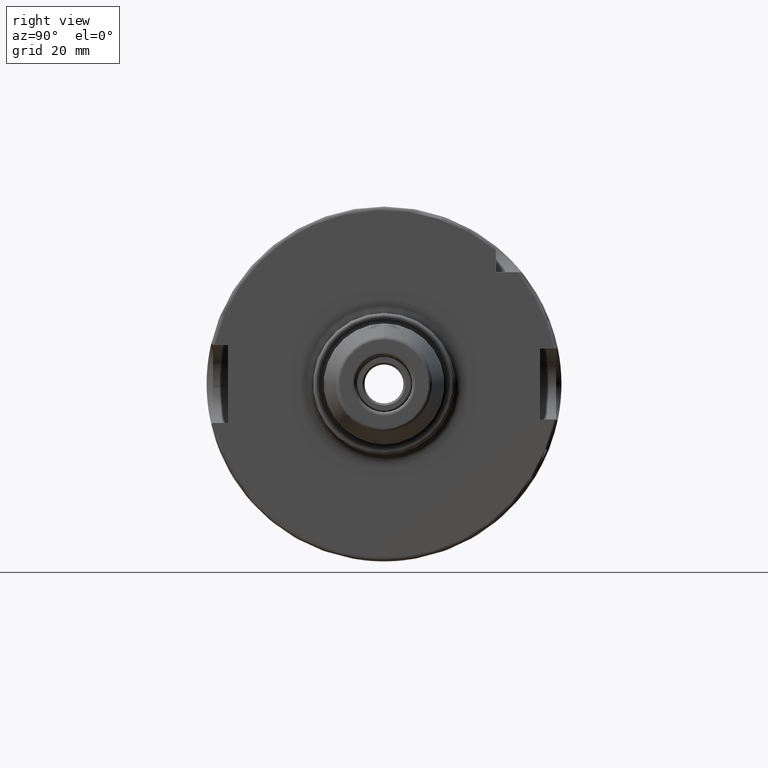
[diagram: clean part render]
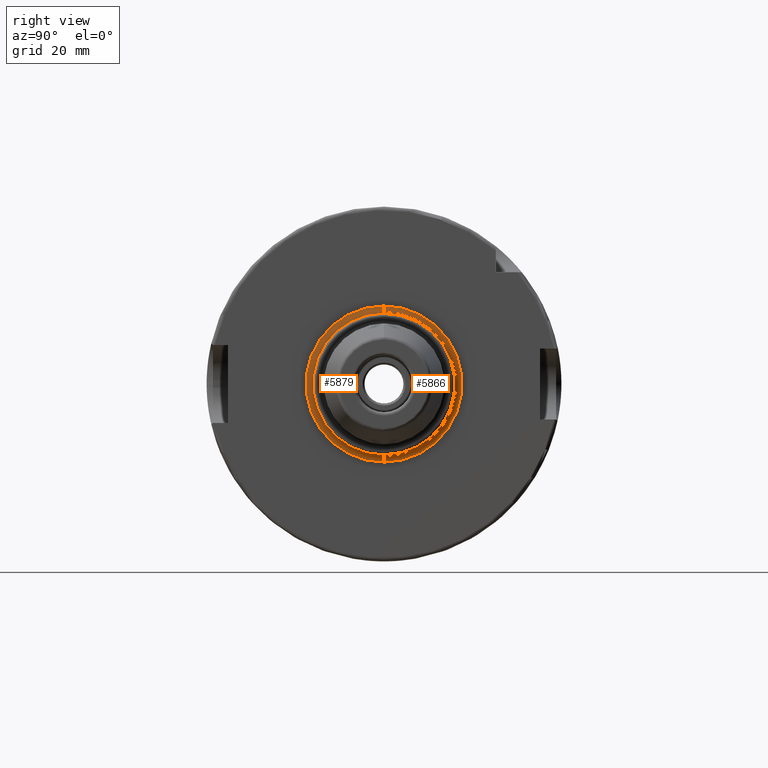
[diagram: same view with one multi-face feature highlighted, each face labeled with its STEP entity id]
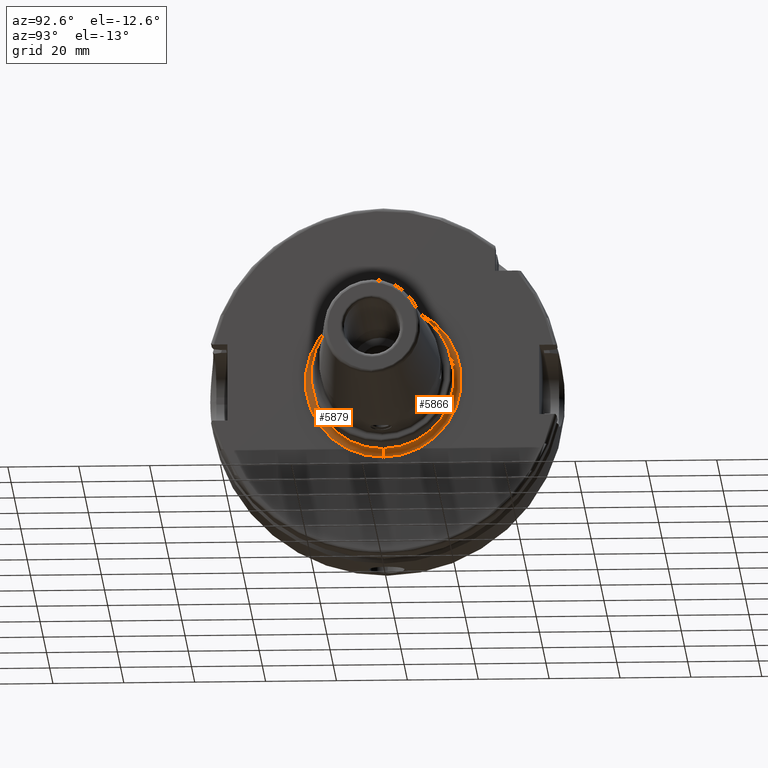
[diagram: same view with one multi-face feature highlighted, each face labeled with its STEP entity id]
A machine part, right view. The highlighted faces form ONE feature: a constant-radius fillet chain: 2 tangent blend faces with common blend radius 2 mm. The faces share edges in the B-rep.
A second angle (auxiliary view) of the same feature is appended — it is thin or edge-on in the first view.
Their STEP definitions:
[1] entity #5879 (Torus):
#1976=CARTESIAN_POINT('',(2.9E1,0.E0,0.E0));
#1977=DIRECTION('',(1.E0,0.E0,0.E0));
#1978=DIRECTION('',(0.E0,0.E0,1.E0));
#1979=AXIS2_PLACEMENT_3D('',#1976,#1977,#1978);
#2191=CARTESIAN_POINT('',(3.1E1,0.E0,-2.2E1));
#2192=DIRECTION('',(0.E0,1.E0,0.E0));
#2193=DIRECTION('',(-1.E0,0.E0,0.E0));
#2194=AXIS2_PLACEMENT_3D('',#2191,#2192,#2193);
#2201=CARTESIAN_POINT('',(3.1E1,0.E0,2.2E1));
#2202=DIRECTION('',(0.E0,-1.E0,0.E0));
#2203=DIRECTION('',(-1.E0,0.E0,0.E0));
#2204=AXIS2_PLACEMENT_3D('',#2201,#2202,#2203);
#2206=CARTESIAN_POINT('',(3.1E1,0.E0,0.E0));
#2207=DIRECTION('',(1.E0,0.E0,0.E0));
#2208=DIRECTION('',(0.E0,0.E0,1.E0));
#2209=AXIS2_PLACEMENT_3D('',#2206,#2207,#2208);
#3397=CARTESIAN_POINT('',(2.9E1,0.E0,-2.2E1));
#3398=CARTESIAN_POINT('',(2.9E1,0.E0,2.2E1));
#3399=VERTEX_POINT('',#3397);
#3400=VERTEX_POINT('',#3398);
#3462=CARTESIAN_POINT('',(3.1E1,0.E0,-2.E1));
#3463=VERTEX_POINT('',#3462);
#3464=CARTESIAN_POINT('',(3.1E1,0.E0,2.E1));
#3465=VERTEX_POINT('',#3464);
#5867=CARTESIAN_POINT('',(3.1E1,0.E0,0.E0));
#5868=DIRECTION('',(1.E0,0.E0,0.E0));
#5869=DIRECTION('',(0.E0,0.E0,1.E0));
#5870=AXIS2_PLACEMENT_3D('',#5867,#5868,#5869);
#5871=TOROIDAL_SURFACE('',#5870,2.2E1,2.E0);
#5872=ORIENTED_EDGE('',*,*,#5612,.F.);
#5873=ORIENTED_EDGE('',*,*,#5862,.T.);
#5875=ORIENTED_EDGE('',*,*,#5874,.T.);
#5876=ORIENTED_EDGE('',*,*,#5858,.F.);
#5877=EDGE_LOOP('',(#5872,#5873,#5875,#5876));
#5878=FACE_OUTER_BOUND('',#5877,.F.);
#5879=ADVANCED_FACE('',(#5878),#5871,.F.);
#1980=CIRCLE('',#1979,2.2E1);
#2195=CIRCLE('',#2194,2.E0);
#2205=CIRCLE('',#2204,2.E0);
#2210=CIRCLE('',#2209,2.E1);
#5612=EDGE_CURVE('',#3400,#3399,#1980,.T.);
#5858=EDGE_CURVE('',#3399,#3463,#2195,.T.);
#5862=EDGE_CURVE('',#3400,#3465,#2205,.T.);
#5874=EDGE_CURVE('',#3465,#3463,#2210,.T.);
[2] entity #5866 (Torus):
#1971=CARTESIAN_POINT('',(2.9E1,0.E0,0.E0));
#1972=DIRECTION('',(1.E0,0.E0,0.E0));
#1973=DIRECTION('',(0.E0,0.E0,-1.E0));
#1974=AXIS2_PLACEMENT_3D('',#1971,#1972,#1973);
#2191=CARTESIAN_POINT('',(3.1E1,0.E0,-2.2E1));
#2192=DIRECTION('',(0.E0,1.E0,0.E0));
#2193=DIRECTION('',(-1.E0,0.E0,0.E0));
#2194=AXIS2_PLACEMENT_3D('',#2191,#2192,#2193);
#2196=CARTESIAN_POINT('',(3.1E1,0.E0,0.E0));
#2197=DIRECTION('',(1.E0,0.E0,0.E0));
#2198=DIRECTION('',(0.E0,0.E0,-1.E0));
#2199=AXIS2_PLACEMENT_3D('',#2196,#2197,#2198);
#2201=CARTESIAN_POINT('',(3.1E1,0.E0,2.2E1));
#2202=DIRECTION('',(0.E0,-1.E0,0.E0));
#2203=DIRECTION('',(-1.E0,0.E0,0.E0));
#2204=AXIS2_PLACEMENT_3D('',#2201,#2202,#2203);
#3397=CARTESIAN_POINT('',(2.9E1,0.E0,-2.2E1));
#3398=CARTESIAN_POINT('',(2.9E1,0.E0,2.2E1));
#3399=VERTEX_POINT('',#3397);
#3400=VERTEX_POINT('',#3398);
#3462=CARTESIAN_POINT('',(3.1E1,0.E0,-2.E1));
#3463=VERTEX_POINT('',#3462);
#3464=CARTESIAN_POINT('',(3.1E1,0.E0,2.E1));
#3465=VERTEX_POINT('',#3464);
#5852=CARTESIAN_POINT('',(3.1E1,0.E0,0.E0));
#5853=DIRECTION('',(1.E0,0.E0,0.E0));
#5854=DIRECTION('',(0.E0,0.E0,1.E0));
#5855=AXIS2_PLACEMENT_3D('',#5852,#5853,#5854);
#5856=TOROIDAL_SURFACE('',#5855,2.2E1,2.E0);
#5857=ORIENTED_EDGE('',*,*,#5610,.F.);
#5859=ORIENTED_EDGE('',*,*,#5858,.T.);
#5861=ORIENTED_EDGE('',*,*,#5860,.T.);
#5863=ORIENTED_EDGE('',*,*,#5862,.F.);
#5864=EDGE_LOOP('',(#5857,#5859,#5861,#5863));
#5865=FACE_OUTER_BOUND('',#5864,.F.);
#5866=ADVANCED_FACE('',(#5865),#5856,.F.);
#1975=CIRCLE('',#1974,2.2E1);
#2195=CIRCLE('',#2194,2.E0);
#2200=CIRCLE('',#2199,2.E1);
#2205=CIRCLE('',#2204,2.E0);
#5610=EDGE_CURVE('',#3399,#3400,#1975,.T.);
#5858=EDGE_CURVE('',#3399,#3463,#2195,.T.);
#5860=EDGE_CURVE('',#3463,#3465,#2200,.T.);
#5862=EDGE_CURVE('',#3400,#3465,#2205,.T.);